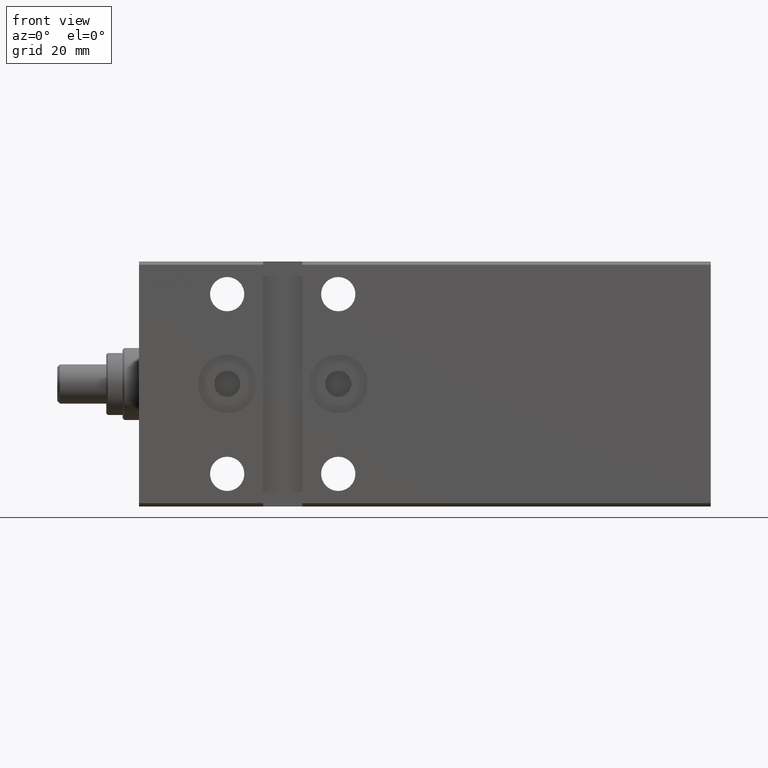
[diagram: clean part render]
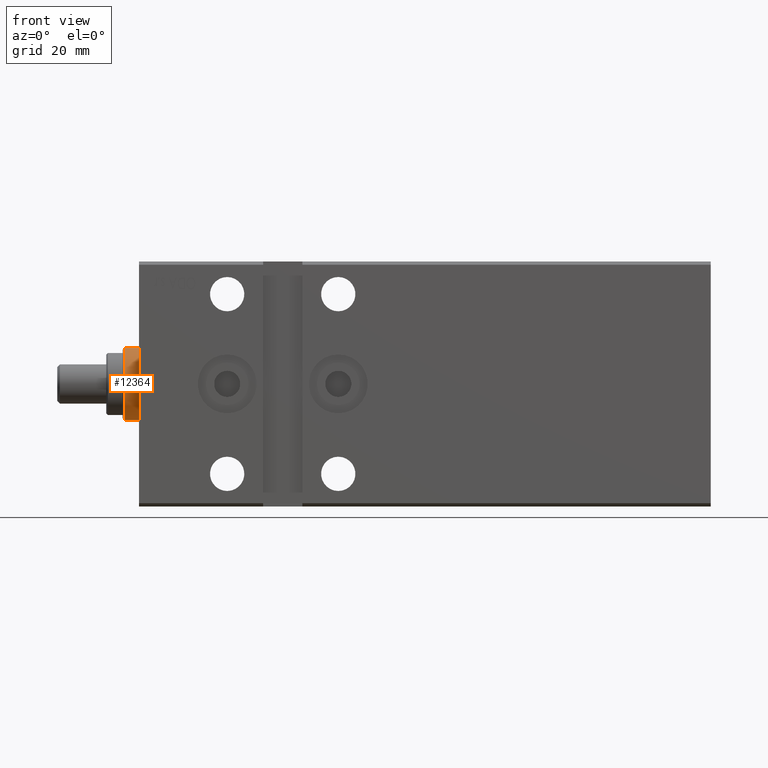
[diagram: same view with one face highlighted and labeled with its STEP entity id]
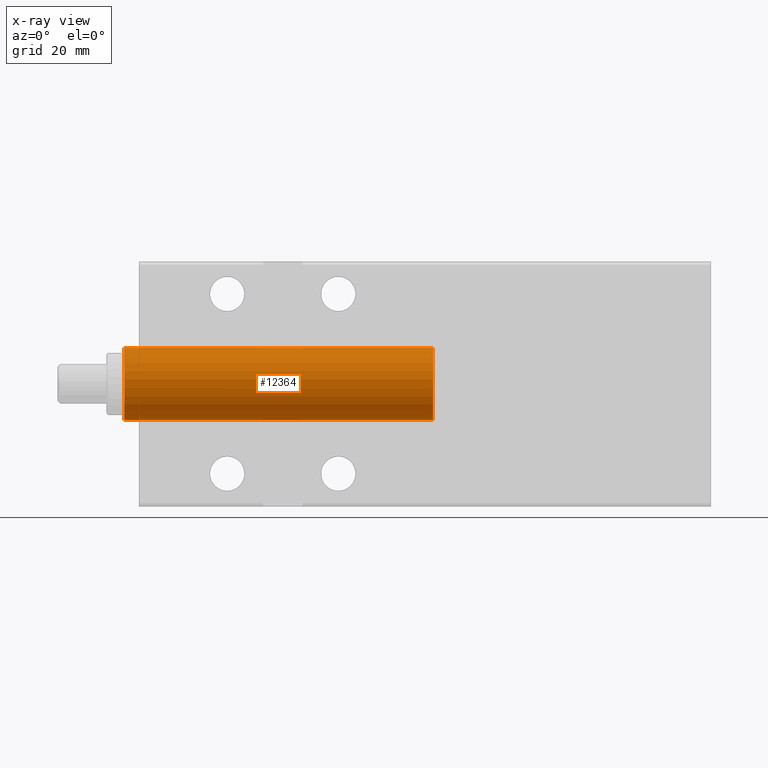
[diagram: x-ray of the same camera — body ghosted, the highlighted face saturated]
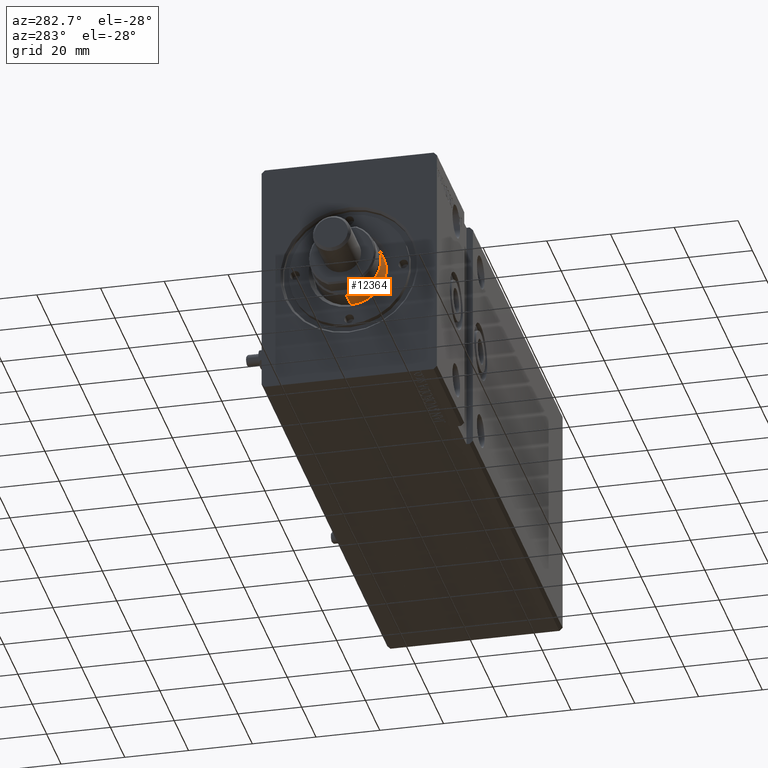
[diagram: same view with one face highlighted and labeled with its STEP entity id]
A machine part, front view. The second image highlights one B-rep face of the part: STEP entity #12364.
The next image is the same camera in x-ray: the body ghosted, the highlighted face saturated — about 4% of this face is hidden behind the body in this view.
A second angle (auxiliary view) of the same face is appended — the face is thin or edge-on in the first view.
In plain terms, the highlighted cylindrical surface (edge-blend (fillet) strip) has radius 11 mm, axis along (1, -0, -0).
Its self-contained STEP definition (entity closure, byte-faithful):
#146 = LINE ( 'NONE', #22865, #5660 ) ;
#223 = LINE ( 'NONE', #39056, #23539 ) ;
#813 = ORIENTED_EDGE ( 'NONE', *, *, #11496, .T. ) ;
#1131 = CIRCLE ( 'NONE', #26858, 11.00000000000000000 ) ;
#2017 = DIRECTION ( 'NONE',  ( 0.000000000000000000, 0.000000000000000000, 1.000000000000000000 ) ) ;
#2744 = CARTESIAN_POINT ( 'NONE',  ( -11.00000000000000000, 0.000000000000000000, 165.7000000000000455 ) ) ;
#5660 = VECTOR ( 'NONE', #19254, 1000.000000000000000 ) ;
#6757 = CYLINDRICAL_SURFACE ( 'NONE', #10460, 11.00000000000000000 ) ;
#8322 = CARTESIAN_POINT ( 'NONE',  ( 0.000000000000000000, 0.000000000000000000, 165.7000000000000455 ) ) ;
#8426 = CARTESIAN_POINT ( 'NONE',  ( 11.00000000000000000, 1.347111479062088405E-15, 165.7000000000000455 ) ) ;
#9209 = EDGE_CURVE ( 'NONE', #35024, #40398, #146, .T. ) ;
#10460 = AXIS2_PLACEMENT_3D ( 'NONE', #26285, #40217, #29680 ) ;
#11496 = EDGE_CURVE ( 'NONE', #40398, #36386, #31469, .T. ) ;
#12364 = ADVANCED_FACE ( 'NONE', ( #24308 ), #6757, .T. ) ;
#13685 = DIRECTION ( 'NONE',  ( 0.000000000000000000, 0.000000000000000000, -1.000000000000000000 ) ) ;
#14692 = DIRECTION ( 'NONE',  ( 1.000000000000000000, 0.000000000000000000, 0.000000000000000000 ) ) ;
#14850 = ORIENTED_EDGE ( 'NONE', *, *, #9209, .T. ) ;
#16577 = AXIS2_PLACEMENT_3D ( 'NONE', #31081, #2017, #28312 ) ;
#19254 = DIRECTION ( 'NONE',  ( -0.000000000000000000, -0.000000000000000000, -1.000000000000000000 ) ) ;
#22865 = CARTESIAN_POINT ( 'NONE',  ( -11.00000000000000000, 0.000000000000000000, 166.2000000000000171 ) ) ;
#23539 = VECTOR ( 'NONE', #29505, 1000.000000000000000 ) ;
#23705 = CARTESIAN_POINT ( 'NONE',  ( 11.00000000000000000, 1.347111479062088405E-15, 71.20000000000000284 ) ) ;
#24308 = FACE_OUTER_BOUND ( 'NONE', #34187, .T. ) ;
#26285 = CARTESIAN_POINT ( 'NONE',  ( 0.000000000000000000, 0.000000000000000000, 166.2000000000000171 ) ) ;
#26858 = AXIS2_PLACEMENT_3D ( 'NONE', #8322, #13685, #14692 ) ;
#28312 = DIRECTION ( 'NONE',  ( 1.000000000000000000, 0.000000000000000000, 0.000000000000000000 ) ) ;
#29505 = DIRECTION ( 'NONE',  ( -0.000000000000000000, -0.000000000000000000, -1.000000000000000000 ) ) ;
#29680 = DIRECTION ( 'NONE',  ( -1.000000000000000000, 0.000000000000000000, 0.000000000000000000 ) ) ;
#29835 = EDGE_CURVE ( 'NONE', #38619, #36386, #223, .T. ) ;
#31081 = CARTESIAN_POINT ( 'NONE',  ( 0.000000000000000000, 0.000000000000000000, 71.20000000000000284 ) ) ;
#31469 = CIRCLE ( 'NONE', #16577, 11.00000000000000000 ) ;
#34187 = EDGE_LOOP ( 'NONE', ( #37041, #37290, #14850, #813 ) ) ;
#35024 = VERTEX_POINT ( 'NONE', #2744 ) ;
#36386 = VERTEX_POINT ( 'NONE', #23705 ) ;
#37041 = ORIENTED_EDGE ( 'NONE', *, *, #29835, .F. ) ;
#37290 = ORIENTED_EDGE ( 'NONE', *, *, #38768, .T. ) ;
#38619 = VERTEX_POINT ( 'NONE', #8426 ) ;
#38768 = EDGE_CURVE ( 'NONE', #38619, #35024, #1131, .T. ) ;
#39056 = CARTESIAN_POINT ( 'NONE',  ( 11.00000000000000000, 1.347111479062088405E-15, 166.2000000000000171 ) ) ;
#39939 = CARTESIAN_POINT ( 'NONE',  ( -11.00000000000000000, 0.000000000000000000, 71.20000000000000284 ) ) ;
#40217 = DIRECTION ( 'NONE',  ( -0.000000000000000000, -0.000000000000000000, -1.000000000000000000 ) ) ;
#40398 = VERTEX_POINT ( 'NONE', #39939 ) ;